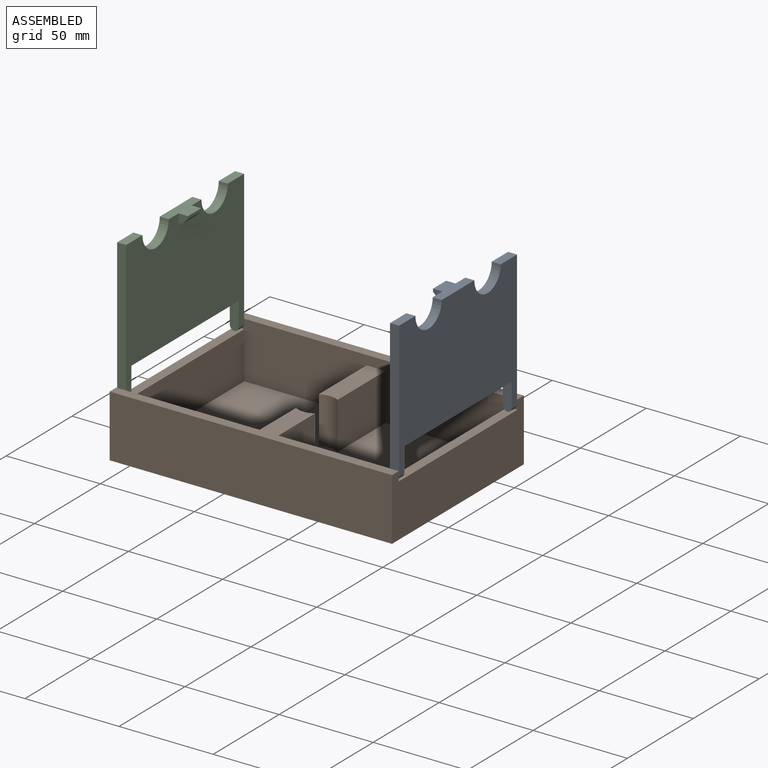
[diagram: assembled view]
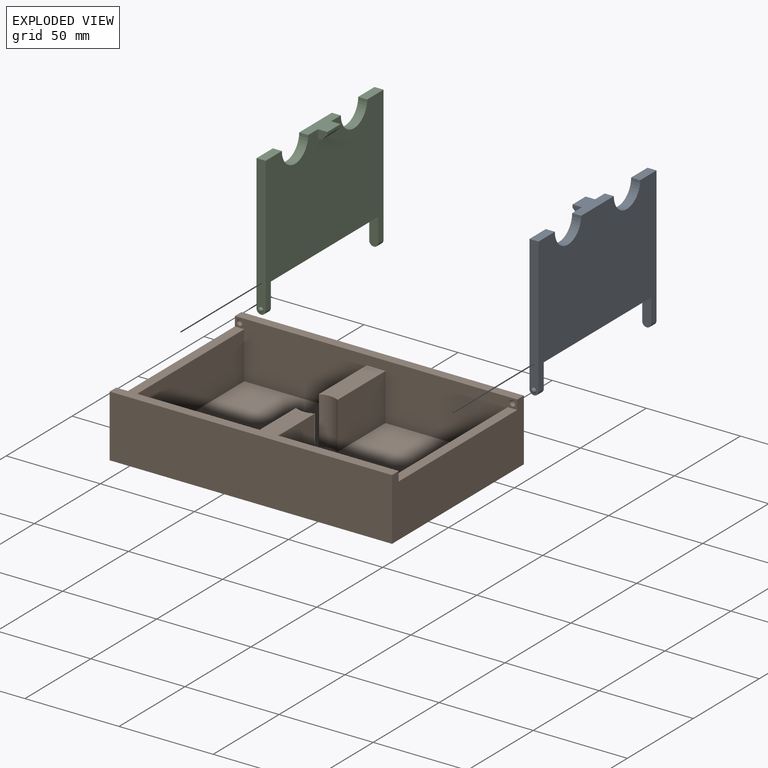
[diagram: exploded view]
GUIDED TOUR — MATED ASSEMBLY (Onshape document 1d0351865476be75fa26302c, AutoMate assembly 1d0351865476be75fa26302c_06bdbbf49fb119dafd516818_e2330dfdc677631c835f160b_default)

This assembly has 3 components, labeled P0..P2 below (a component is one placed occurrence of a part; the same part can appear more than once), held together by 2 mates. A mate is a constraint between two components; its type names the relative motion it leaves free:
  PIN_SLOT — leaves rotation about the listed axis plus translation along a slot free.
Axis/direction vectors are unit vectors and 'through' points are millimeter coordinates, both in the assembly's world frame.

MATES
  1. PIN_SLOT "Pin slot 1": P0 <-> P1, axis (0.000, 1.000, 0.000) through (72.50, 45.00, 30.50) mm
  2. PIN_SLOT "Pin slot 2": P2 <-> P1, axis (0.000, 1.000, 0.000) through (-72.50, 45.00, 30.50) mm

ASSEMBLY ORDER
  1. P2 — the base component [order verified]
  2. P0 [order verified]
  3. P1 [order verified]
Order-tag legend:
  [order verified] — this step's position reverses a verified removal order: the component was checked to insert without passing through the ones already placed.

Of the 3 components, 1 carries the full construction recipe — the FeatureScript program that regenerates the part's solid from scratch; the rest are supplied as boundary geometry only.
Each toured component is shown spotlighted twice — in the assembled view, then in the exploded view, where a leader line traces a displaced component back to its assembled socket (saturated green if recipe-attached, orange if geometry-only; every other component desaturated gray) — followed by its recipe or geometry summary and the mates that hold it.
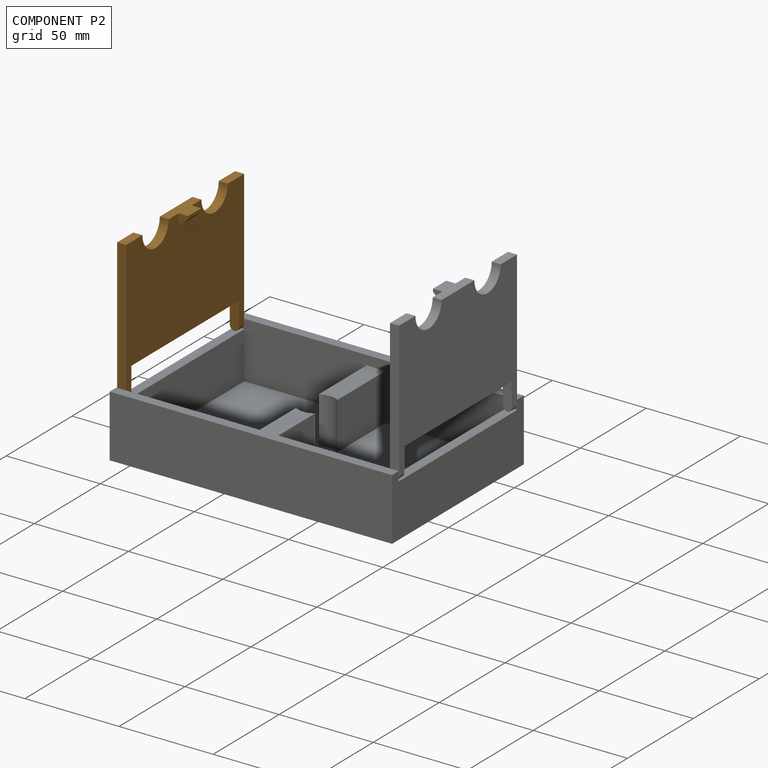
[diagram: component P2 — assembled]
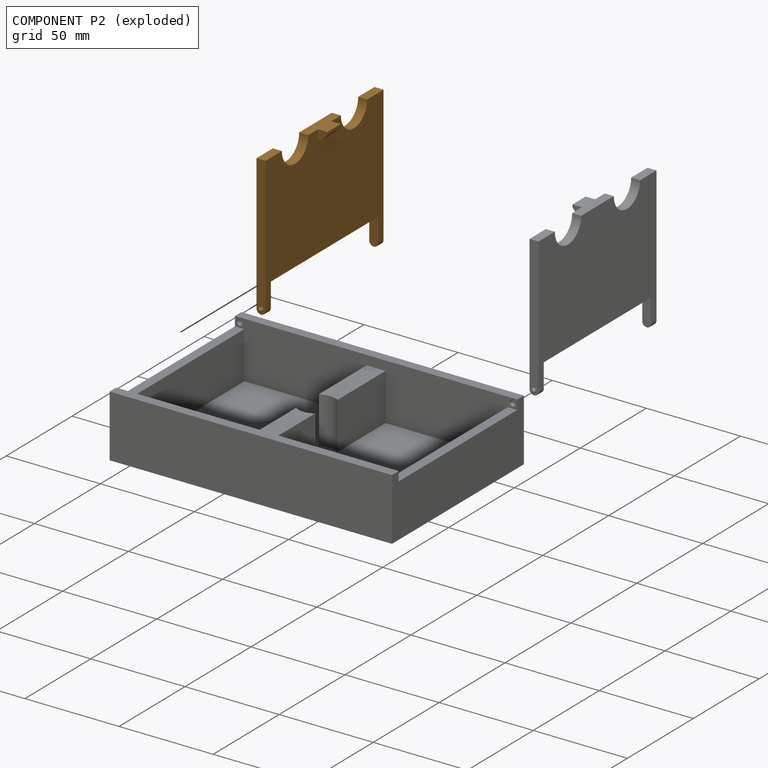
[diagram: component P2 — exploded]
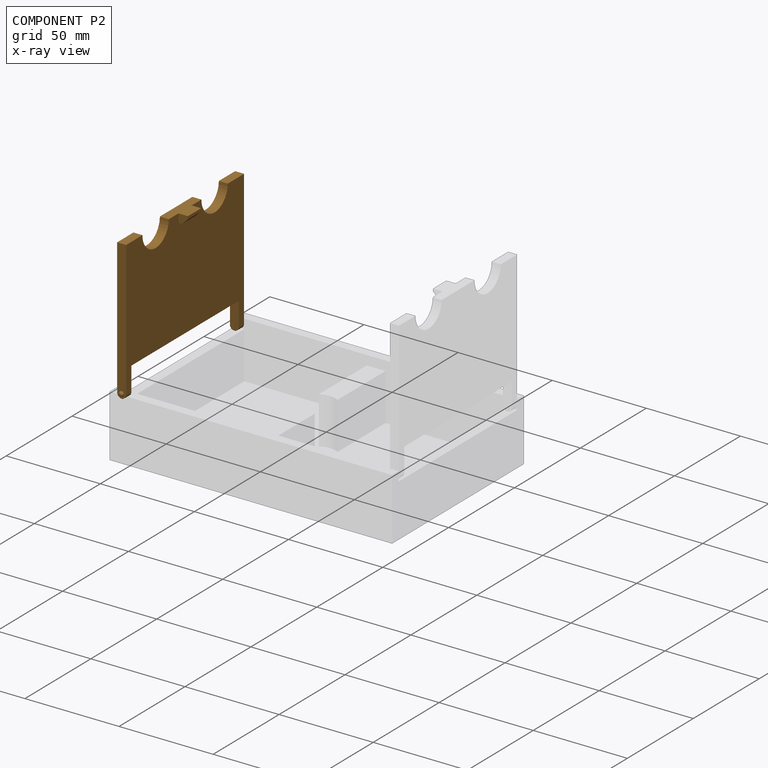
[diagram: component P2 — x-ray view]
COMPONENT P2 — geometry summary (no construction recipe available for this part):
  bounding box: 90.8 x 74.5 x 9.8 mm
  B-rep topology: 1 solid, 21 faces, 114 edges
  volume: 24798 mm^3 (37% of its bounding box)
  symmetry: mirror-symmetric across its y mid-plane
Held by: PIN_SLOT mate "Pin slot 2" to P1.
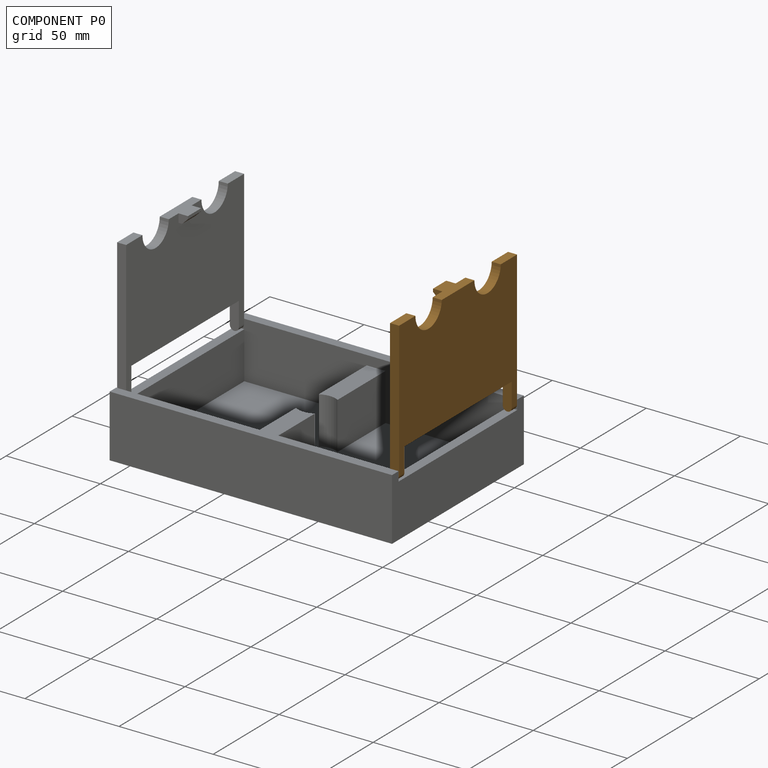
[diagram: component P0 — assembled]
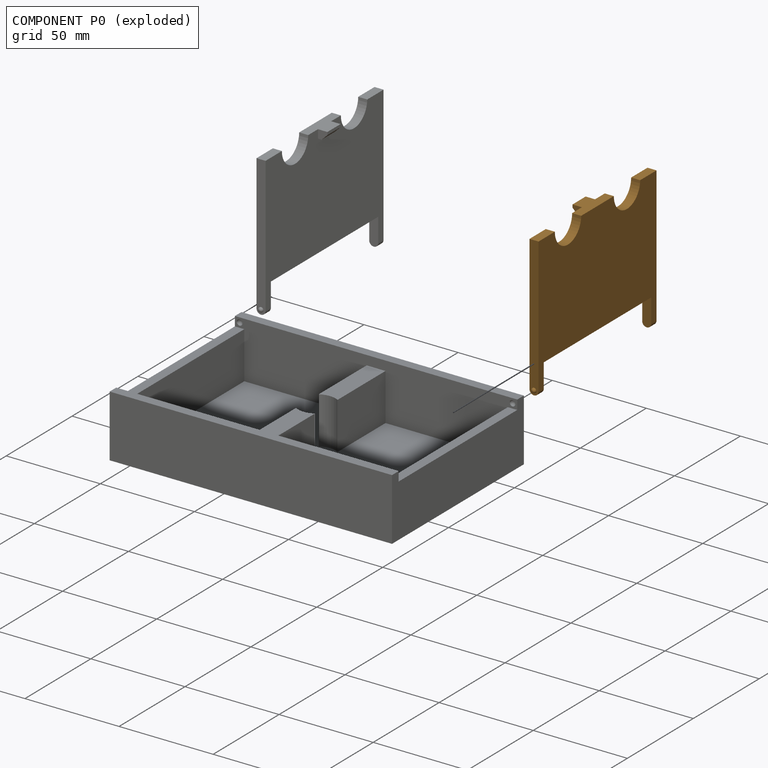
[diagram: component P0 — exploded]
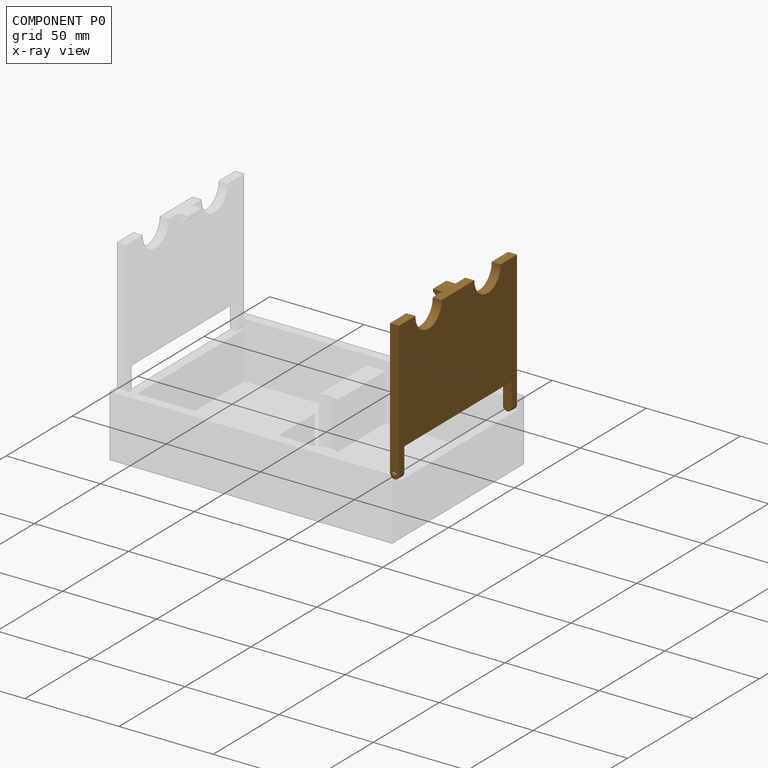
[diagram: component P0 — x-ray view]
COMPONENT P0 — geometry summary (no construction recipe available for this part):
  bounding box: 90.8 x 74.5 x 9.8 mm
  B-rep topology: 1 solid, 21 faces, 114 edges
  volume: 24798 mm^3 (37% of its bounding box)
  symmetry: mirror-symmetric across its y mid-plane
Held by: PIN_SLOT mate "Pin slot 1" to P1.
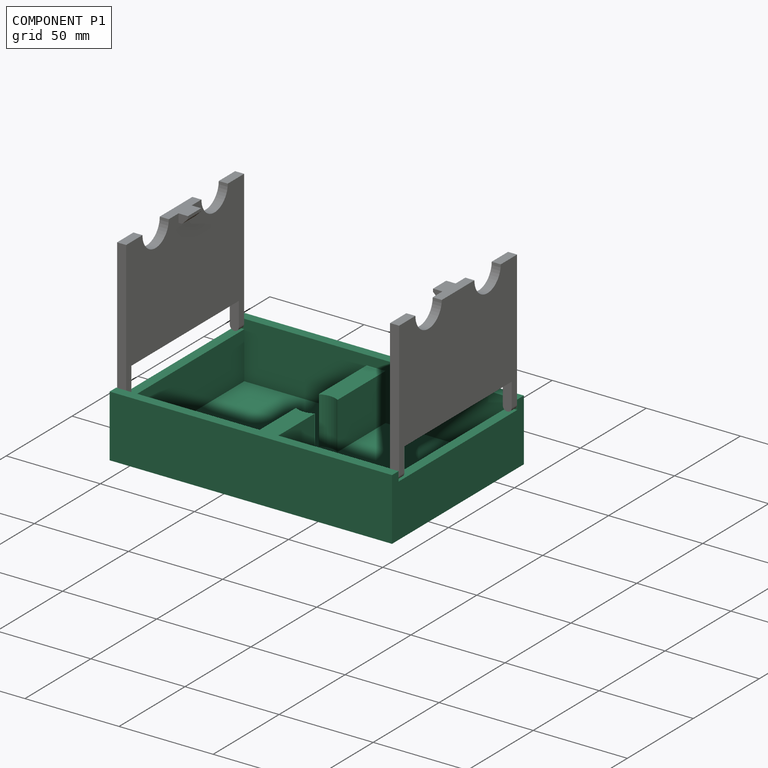
[diagram: component P1 — assembled]
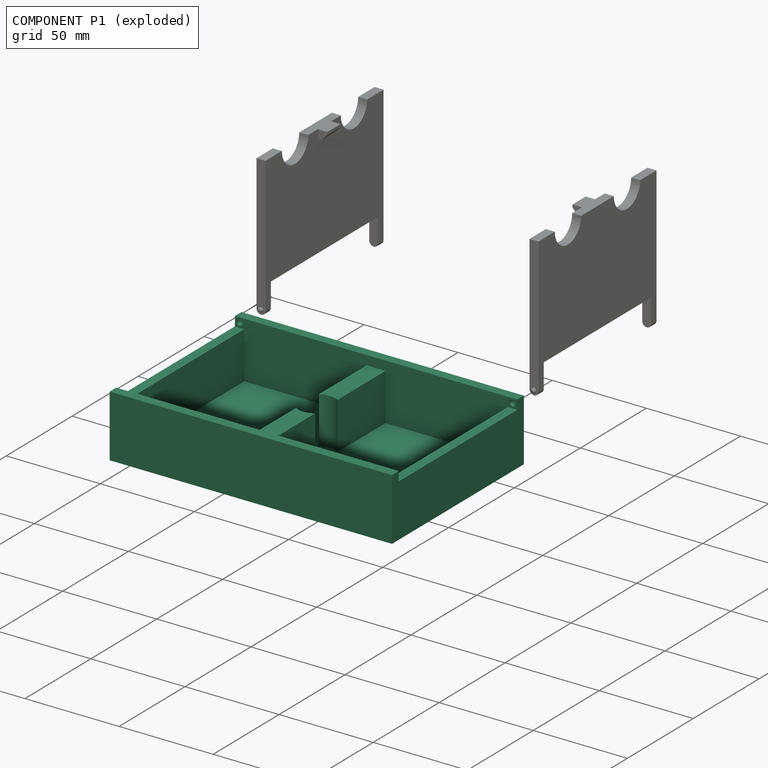
[diagram: component P1 — exploded]
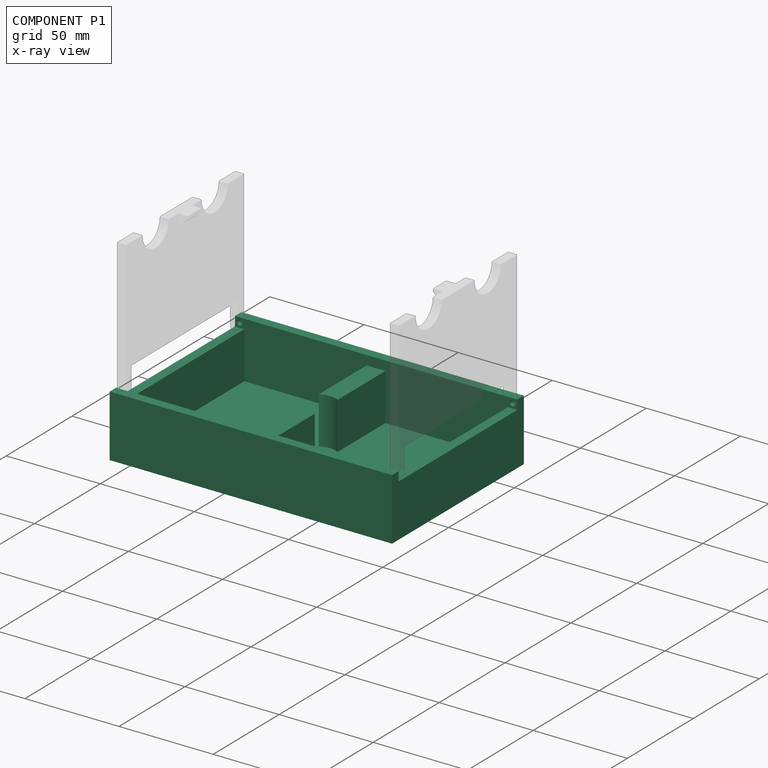
[diagram: component P1 — x-ray view]
COMPONENT P1 — recipe-attached (CADFS 00843651, mesh-verified: the recipe's output STEP matches this component's geometry to below the mesh-comparison resolution (tessellation chordal tolerance ~0.275 mm)).
Held by: PIN_SLOT mate "Pin slot 1" to P0; PIN_SLOT mate "Pin slot 2" to P2.
Construction recipe (FeatureScript — the CAD program that rebuilds this solid; sketch coordinates are in the units given by the * unit suffixes, e.g. mm):

FeatureScript 1511;
import(path : "onshape/std/geometry.fs", version : "1511.0");
import(path : "onshape/std/common.fs", version : "1511.0");
const mm = millimeter;
const VERTEX = EntityType.VERTEX;
const EDGE = EntityType.EDGE;
const FACE = EntityType.FACE;
const BODY = EntityType.BODY;
function v(x, y){return vector(x, y);}
function OD(order){return orderDisambiguation(order);}
function OSD(set){return originalSetDisambiguation(set);}
function TD(topology){return topologyDisambiguation(topology);}
function TDD(query){return trueDependencyDisambiguation(query);}
function sQuery(a, b, c) {return sketchEntityQuery(a, b, c);}

annotation { "Feature Type Name" : "Feature", "Feature Type Description" : "" }
export const myFeature = defineFeature(function(context is Context, id is Id, definition is map)
    precondition{}
    {
        {
            var Q0;
            Q0=qCreatedBy(makeId("Top.planeOp"),FACE);
            var sketch = newSketch(context, id + "F0", { "sketchPlane" : qUnion([Q0])});
            skLineSegment(sketch, "E0.bottom", {"start": v(75, -50) * mm, "end": v(-75, -50) * mm});
            skLineSegment(sketch, "E0.top", {"start": v(75, 50) * mm, "end": v(-75, 50) * mm});
            skLineSegment(sketch, "E0.left", {"start": v(75, -50) * mm, "end": v(75, 50) * mm});
            skLineSegment(sketch, "E0.right", {"start": v(-75, -50) * mm, "end": v(-75, 50) * mm});
            skPoint(sketch, "E0.middle", {"position": v(0, 0) * mm});
            skSolve(sketch);
        }
        {
            var Q0;
            Q0 = qSketchRegion(id + "F0", true);
            extrude(context, id + "F1", {"entities" : qUnion([Q0]), "depth" : 33 * mm, "offsetDistance" : 25 * mm});
        }
        {
            var Q0;
            Q0=makeQuery(id+"F1.opExtrude","CAP_FACE",FACE,{"disambiguationData":[OSD([sQuery(id+"F0.wireOp",EDGE,"E0.bottom"),sQuery(id+"F0.wireOp",EDGE,"E0.top"),sQuery(id+"F0.wireOp",EDGE,"E0.left"),sQuery(id+"F0.wireOp",EDGE,"E0.right")])],"isStart":false});
            var sketch = newSketch(context, id + "F2", { "sketchPlane" : qUnion([Q0])});
            skLineSegment(sketch, "E1.bottom", {"start": v(-70, 45) * mm, "end": v(-5, 45) * mm});
            skLineSegment(sketch, "E1.top", {"start": v(-70, -45) * mm, "end": v(-5, -45) * mm});
            skLineSegment(sketch, "E1.left", {"start": v(-70, 45) * mm, "end": v(-70, -45) * mm});
            skLineSegment(sketch, "E1.right", {"start": v(-5, 45) * mm, "end": v(-5, -45) * mm});
            skPoint(sketch, "E1.middle", {"position": v(-37.5, 0) * mm});
            skPoint(sketch, "E2", {"position": v(0, 50) * mm});
            skPoint(sketch, "E3", {"position": v(-37.5, 50) * mm});
            skLineSegment(sketch, "E4.MirrorCS", {"start": v(70, 45) * mm, "end": v(70, -45) * mm});
            skLineSegment(sketch, "E5.MirrorCS", {"start": v(70, -45) * mm, "end": v(5, -45) * mm});
            skLineSegment(sketch, "E6.MirrorCS", {"start": v(70, 45) * mm, "end": v(5, 45) * mm});
            skLineSegment(sketch, "E7.MirrorCS", {"start": v(5, 45) * mm, "end": v(5, -45) * mm});
            skSolve(sketch);
        }
        {
            var Q0;
            Q0=makeQuery(id+"F2.imprint","IMPRINT",FACE,{"disambiguationData":[TD([[makeQuery(id+"F2.imprint","IMPRINT",EDGE,{"derivedFrom":sQuery(id+"F2.wireOp",EDGE,"E1.bottom")}),-1.0]])]});
            var Q1;
            Q1=makeQuery(id+"F2.imprint","IMPRINT",FACE,{"disambiguationData":[TD([[makeQuery(id+"F2.imprint","IMPRINT",EDGE,{"derivedFrom":sQuery(id+"F2.wireOp",EDGE,"E4.MirrorCS")}),-1.0]])]});
            extrude(context, id + "F3", {"entities" : qUnion([Q0, Q1]), "operationType" : NewBodyOperationType.REMOVE, "oppositeDirection" : true, "depth" : 30 * mm, "offsetDistance" : 25 * mm});
        }
        {
            var Q0;
            Q0=makeQuery(id+"F1.opExtrude","CAP_FACE",FACE,{"disambiguationData":[OSD([sQuery(id+"F0.wireOp",EDGE,"E0.bottom"),sQuery(id+"F0.wireOp",EDGE,"E0.top"),sQuery(id+"F0.wireOp",EDGE,"E0.left"),sQuery(id+"F0.wireOp",EDGE,"E0.right")])],"isStart":false});
            var sketch = newSketch(context, id + "F4", { "sketchPlane" : qUnion([Q0])});
            skLineSegment(sketch, "E8.bottom", {"start": v(-70, 45) * mm, "end": v(-75, 45) * mm});
            skLineSegment(sketch, "E8.top", {"start": v(-70, -45) * mm, "end": v(-75, -45) * mm});
            skLineSegment(sketch, "E8.left", {"start": v(-70, 45) * mm, "end": v(-70, -45) * mm});
            skLineSegment(sketch, "E8.right", {"start": v(-75, 45) * mm, "end": v(-75, -45) * mm});
            skLineSegment(sketch, "E9.bottom", {"start": v(-5, 45) * mm, "end": v(0, 45) * mm});
            skLineSegment(sketch, "E9.top", {"start": v(-5, -45) * mm, "end": v(0, -45) * mm});
            skLineSegment(sketch, "E9.left", {"start": v(-5, 45) * mm, "end": v(-5, -45) * mm});
            skLineSegment(sketch, "E9.right", {"start": v(0, 45) * mm, "end": v(0, -45) * mm});
            skLineSegment(sketch, "E10.MirrorCS", {"start": v(70, 45) * mm, "end": v(70, -45) * mm});
            skLineSegment(sketch, "E11.MirrorCS", {"start": v(70, 45) * mm, "end": v(75, 45) * mm});
            skLineSegment(sketch, "E12.MirrorCS", {"start": v(75, 45) * mm, "end": v(75, -45) * mm});
            skLineSegment(sketch, "E13.MirrorCS", {"start": v(70, -45) * mm, "end": v(75, -45) * mm});
            skLineSegment(sketch, "E14.MirrorCS", {"start": v(5, 45) * mm, "end": v(5, -45) * mm});
            skLineSegment(sketch, "E15.MirrorCS", {"start": v(5, -45) * mm, "end": v(0, -45) * mm});
            skLineSegment(sketch, "E16.MirrorCS", {"start": v(5, 45) * mm, "end": v(0, 45) * mm});
            skSolve(sketch);
        }
        {
            var Q0;
            Q0 = qSketchRegion(id + "F4", true);
            extrude(context, id + "F5", {"entities" : qUnion([Q0]), "operationType" : NewBodyOperationType.REMOVE, "oppositeDirection" : true, "depth" : 5 * mm, "offsetDistance" : 25 * mm});
        }
        {
            var Q0;
            Q0=makeQuery(id+"F5.boolean.opBoolean","MERGE",FACE,{"derivedFrom":[makeQuery(id+"F3.boolean.opBoolean","COPY",FACE,{"derivedFrom":makeQuery(id+"F3.opExtrude","SWEPT_FACE",FACE,{"disambiguationData":[OSD([sQuery(id+"F2.wireOp",EDGE,"E1.bottom")])]})}),makeQuery(id+"F3.boolean.opBoolean","COPY",FACE,{"derivedFrom":makeQuery(id+"F3.opExtrude","SWEPT_FACE",FACE,{"disambiguationData":[OSD([sQuery(id+"F2.wireOp",EDGE,"E6.MirrorCS")])]})}),makeQuery(id+"F5.opExtrude","SWEPT_FACE",FACE,{"disambiguationData":[OSD([sQuery(id+"F4.wireOp",EDGE,"E8.bottom")])]}),makeQuery(id+"F5.opExtrude","SWEPT_FACE",FACE,{"disambiguationData":[OSD([sQuery(id+"F4.wireOp",EDGE,"E9.bottom"),sQuery(id+"F4.wireOp",EDGE,"E16.MirrorCS")])]}),makeQuery(id+"F5.opExtrude","SWEPT_FACE",FACE,{"disambiguationData":[OSD([sQuery(id+"F4.wireOp",EDGE,"E11.MirrorCS")])]})]});
            var sketch = newSketch(context, id + "F6", { "sketchPlane" : qUnion([Q0])});
            skPoint(sketch, "E17", {"position": v(-72.5, 30.5) * mm});
            skArc(sketch, "E18", {"start": v(-72.5, 32) * mm, "mid": v(-74, 30.5) * mm, "end": v(-72.5, 29) * mm});
            skLineSegment(sketch, "E19", {"start": v(-72.5, 32) * mm, "end": v(-72.5, 29) * mm});
            skSolve(sketch);
        }
        {
            var Q0;
            Q0=makeQuery(id+"F5.boolean.opBoolean","COPY",FACE,{"derivedFrom":makeQuery(id+"F5.opExtrude","CAP_FACE",FACE,{"disambiguationData":[OSD([sQuery(id+"F4.wireOp",EDGE,"E9.bottom"),sQuery(id+"F4.wireOp",EDGE,"E9.top"),sQuery(id+"F4.wireOp",EDGE,"E9.left"),sQuery(id+"F4.wireOp",EDGE,"E14.MirrorCS"),sQuery(id+"F4.wireOp",EDGE,"E15.MirrorCS"),sQuery(id+"F4.wireOp",EDGE,"E16.MirrorCS")])],"isStart":false})});
            var sketch = newSketch(context, id + "F7", { "sketchPlane" : qUnion([Q0])});
            skCircle(sketch, "E20", {"center": v(0, 0) * mm, "radius": 10 * mm});
            skSolve(sketch);
        }
        {
            var Q0;
            Q0 = qSketchRegion(id + "F7", true);
            var Q1;
            Q1=makeQuery(id+"F3.boolean.opBoolean","COPY",FACE,{"derivedFrom":makeQuery(id+"F3.opExtrude","CAP_FACE",FACE,{"disambiguationData":[OSD([sQuery(id+"F2.wireOp",EDGE,"E4.MirrorCS"),sQuery(id+"F2.wireOp",EDGE,"E5.MirrorCS"),sQuery(id+"F2.wireOp",EDGE,"E6.MirrorCS"),sQuery(id+"F2.wireOp",EDGE,"E7.MirrorCS")])],"isStart":false})});
            extrude(context, id + "F8", {"entities" : qUnion([Q0]), "operationType" : NewBodyOperationType.REMOVE, "endBound" : BoundingType.UP_TO_SURFACE, "oppositeDirection" : true, "depth" : 25 * mm, "endBoundEntityFace" : qUnion([Q1]), "offsetDistance" : 25 * mm});
        }
        {
            var Q0;
            Q0 = qSketchRegion(id + "F6", true);
            var Q1;
            Q1=sQuery(id+"F6.wireOp",EDGE,"E19");
            revolve(context, id + "F9", {"operationType" : NewBodyOperationType.REMOVE, "surfaceOperationType" : NewSurfaceOperationType.NEW, "entities" : qUnion([Q0]), "axis" : qUnion([Q1]), "revolveType" : RevolveType.FULL, "oppositeDirection" : true});
        }
        {
            var Q0;
            Q0=makeQuery(id+"F1.opExtrude","SWEPT_BODY",BODY,{"disambiguationData":[OSD([sQuery(id+"F0.wireOp",EDGE,"E0.bottom"),sQuery(id+"F0.wireOp",EDGE,"E0.top"),sQuery(id+"F0.wireOp",EDGE,"E0.left"),sQuery(id+"F0.wireOp",EDGE,"E0.right")])]});
            var Q1;
            Q1=qCreatedBy(makeId("Right.planeOp"),FACE);
            mirror(context, id + "F10", {"operationType" : NewBodyOperationType.INTERSECT, "entities" : qUnion([Q0]), "mirrorPlane" : qUnion([Q1])});
        }
        {
            var Q0;
            Q0=makeQuery(id+"F1.opExtrude","SWEPT_BODY",BODY,{"disambiguationData":[OSD([sQuery(id+"F0.wireOp",EDGE,"E0.bottom"),sQuery(id+"F0.wireOp",EDGE,"E0.top"),sQuery(id+"F0.wireOp",EDGE,"E0.left"),sQuery(id+"F0.wireOp",EDGE,"E0.right")])]});
            var Q1;
            Q1=qCreatedBy(makeId("Front.planeOp"),FACE);
            mirror(context, id + "F11", {"operationType" : NewBodyOperationType.INTERSECT, "entities" : qUnion([Q0]), "mirrorPlane" : qUnion([Q1])});
        }
    });
PROVENANCE & LICENSES
Assembly (occurrences, transforms, mates, per-part STEP geometry): AutoMate dataset, Zenodo record 7776208, CC0.
Construction recipes: CADFS (HuggingFace VladPyatov/CADFS, CC-BY-4.0, layered over the ABC dataset), FeatureScript reconstruction programs keyed by ABC model id.
Join: ABC meta listings map ABC model id -> Onshape documentId; within a shared document, parts are matched by geometric signature (bounding-box dims + volume at 0.1% relative tolerance, exact B-rep face/solid counts).
Verification: 1 of this assembly's 3 components carries a recipe attachment, and every attachment is mesh-verified: the CADFS STEP and the AutoMate member STEP were compared as meshes in their shared local frame (symmetric sampled-point-to-mesh distance); worst across the 1 attachment: below the mesh-comparison resolution (tessellation chordal tolerance ~0.275 mm) on a 183 mm part.
Renders: orthographic iso camera (az 35 / el 25); the floor grid conveys scale (grid pitch printed in each image; no ruler). In the exploded view each component is displaced by its stored offset vector: the offsets alone carry the explosion direction (mate normal/axis signs are not orientation cues and do not encode it), and separation distances are assigned per mate-chain, not proportionally to assembly-order depth.
